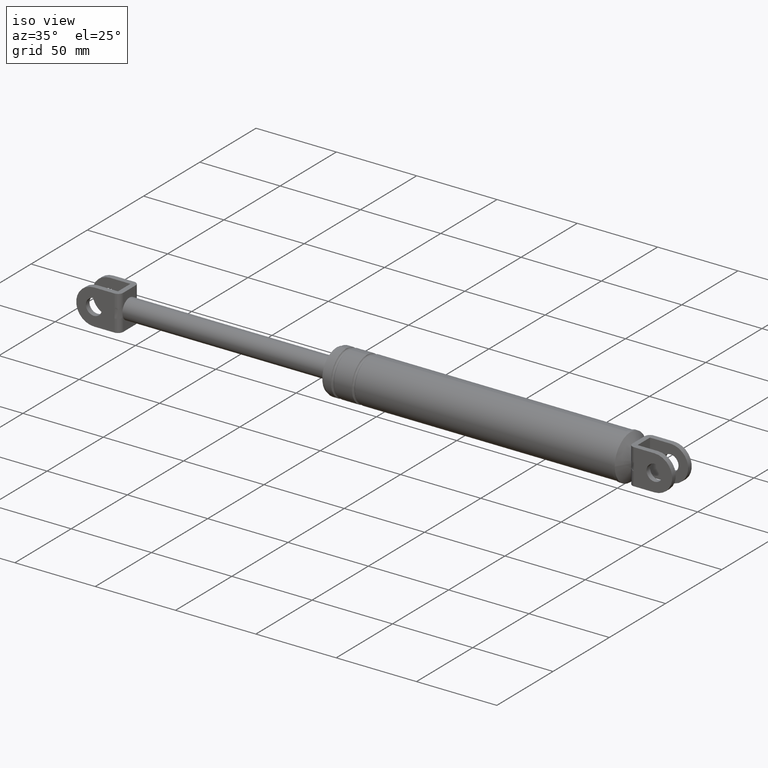
[diagram: clean part render]
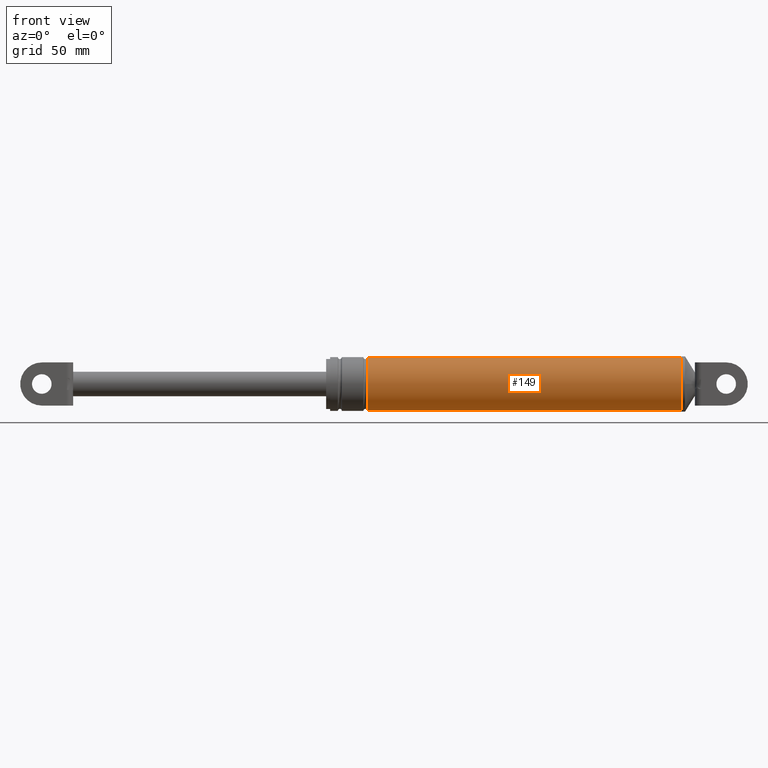
[diagram: tour spotlight — one face highlighted and labeled with its STEP entity id]
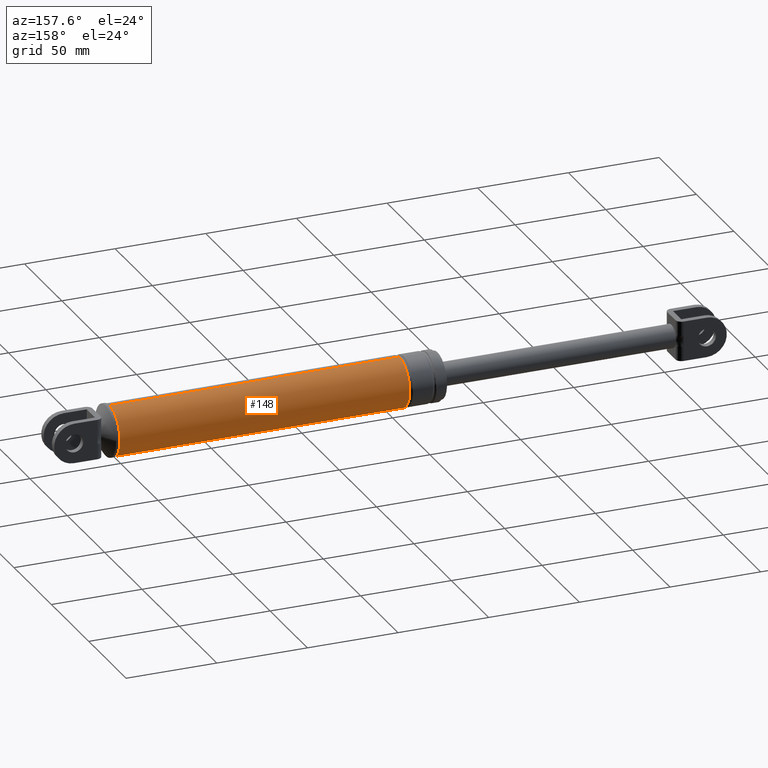
[diagram: tour spotlight — one face highlighted and labeled with its STEP entity id]
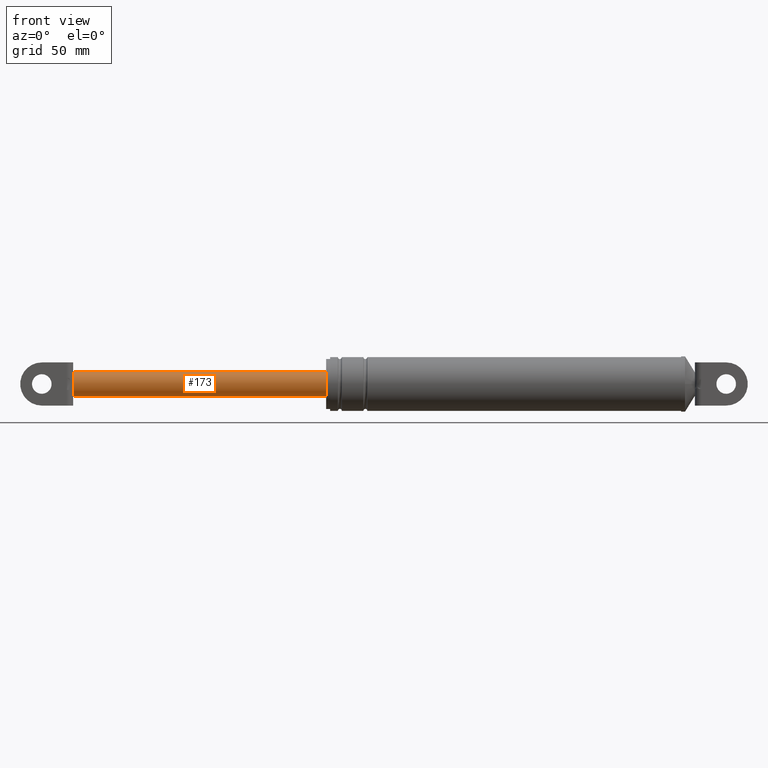
[diagram: tour spotlight — one face highlighted and labeled with its STEP entity id]
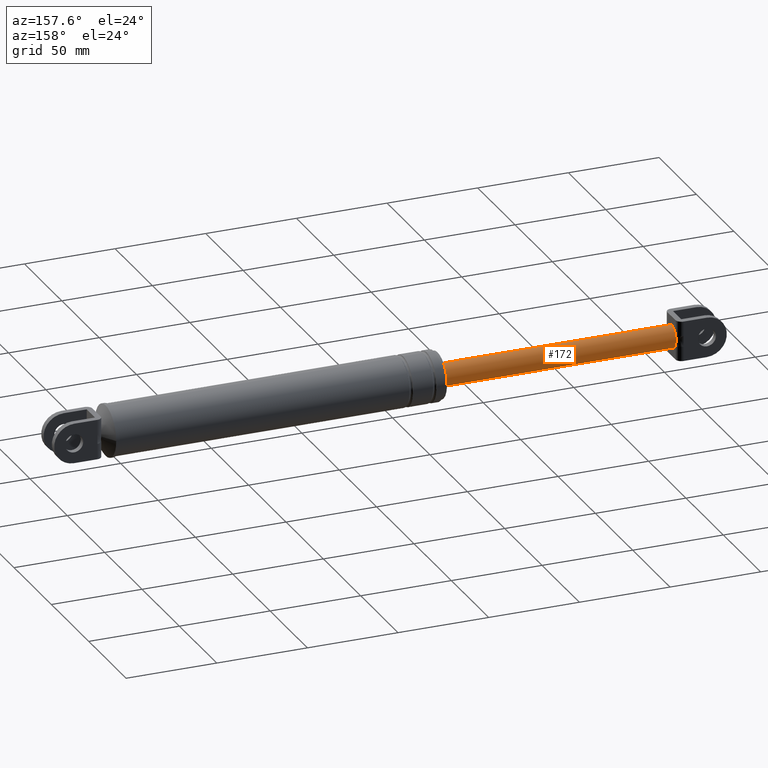
[diagram: tour spotlight — one face highlighted and labeled with its STEP entity id]
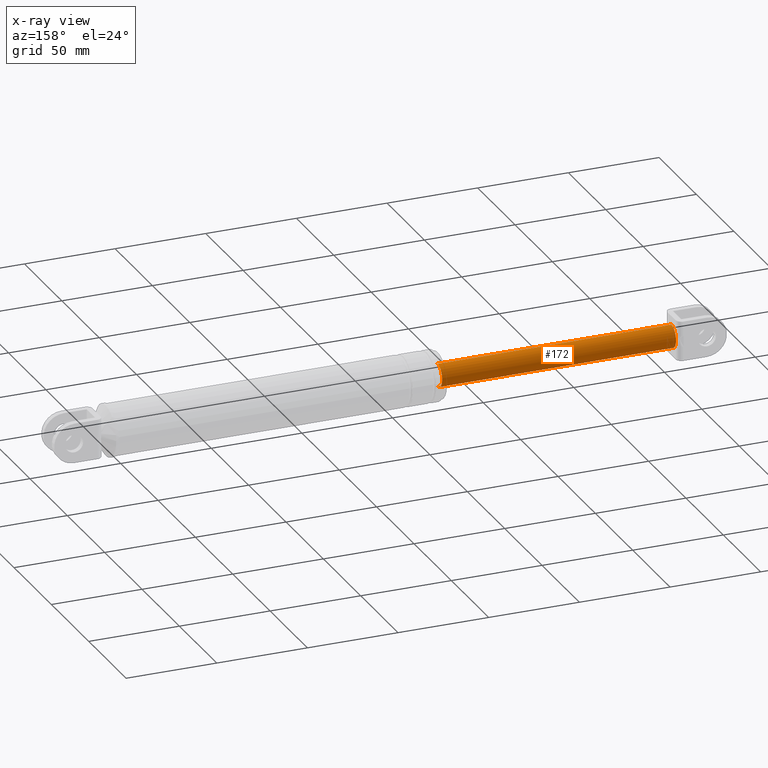
[diagram: x-ray of the same camera — body ghosted, this tour face saturated]
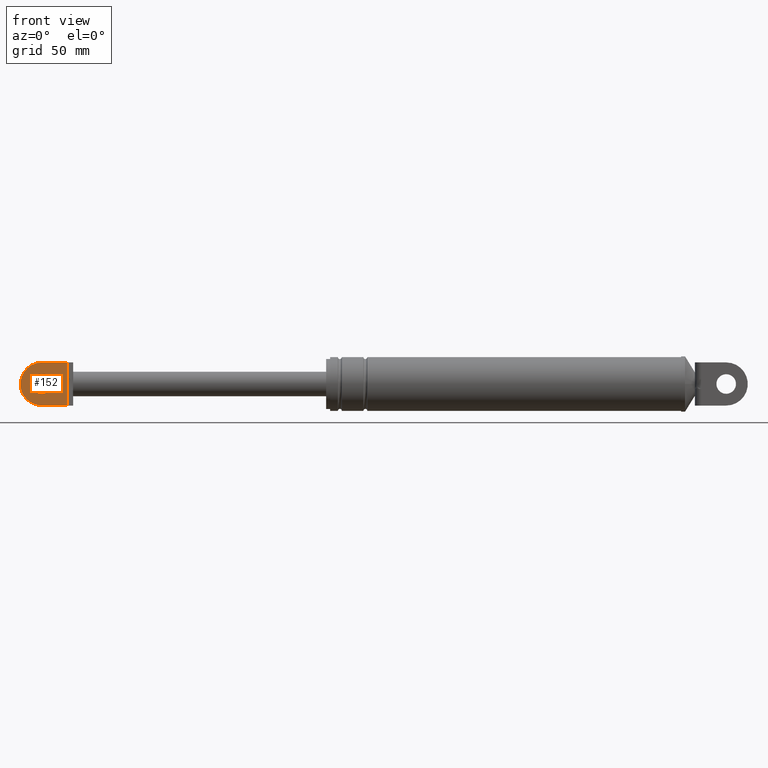
[diagram: tour spotlight — one face highlighted and labeled with its STEP entity id]
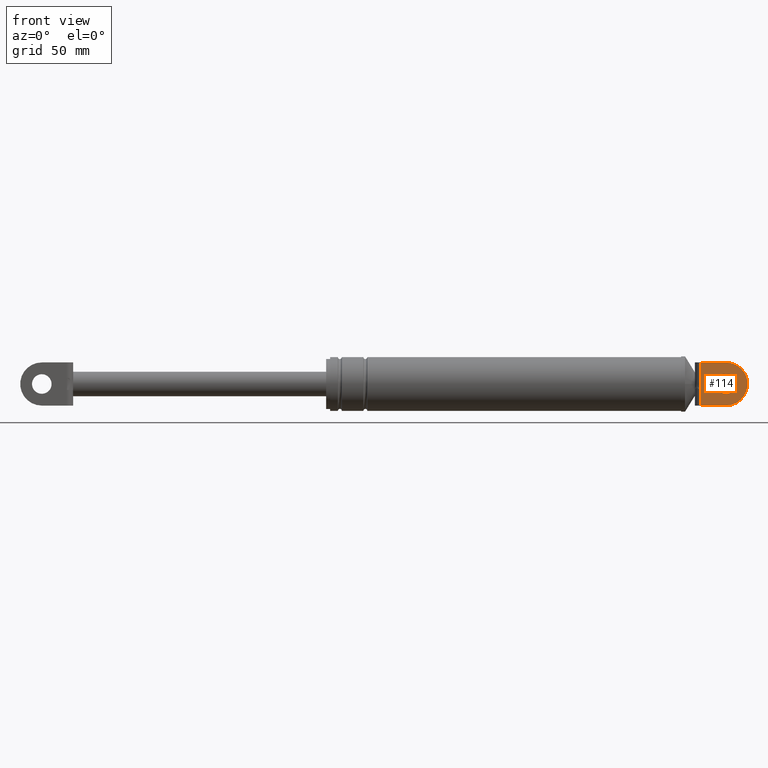
[diagram: tour spotlight — one face highlighted and labeled with its STEP entity id]
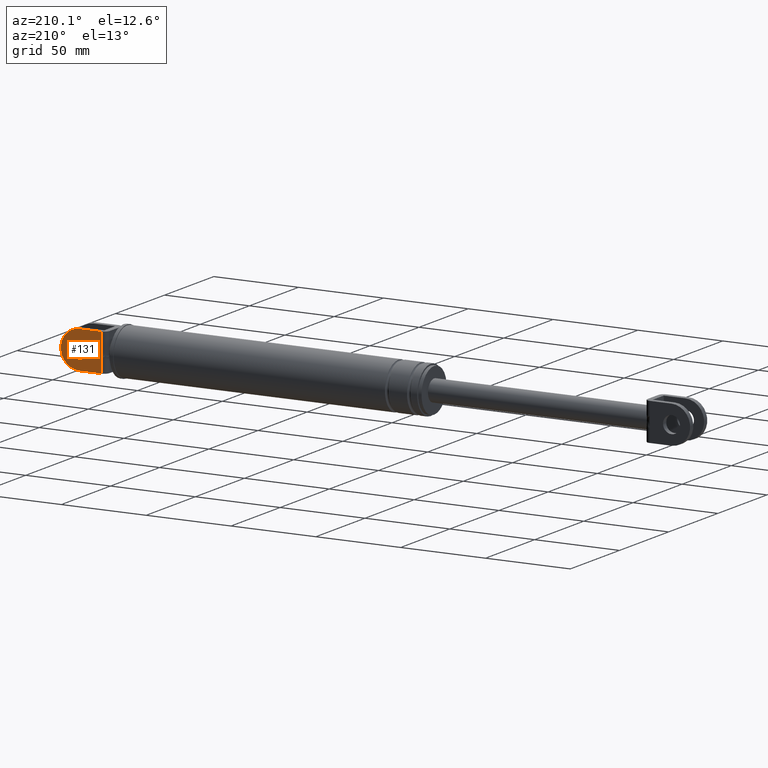
[diagram: tour spotlight — one face highlighted and labeled with its STEP entity id]
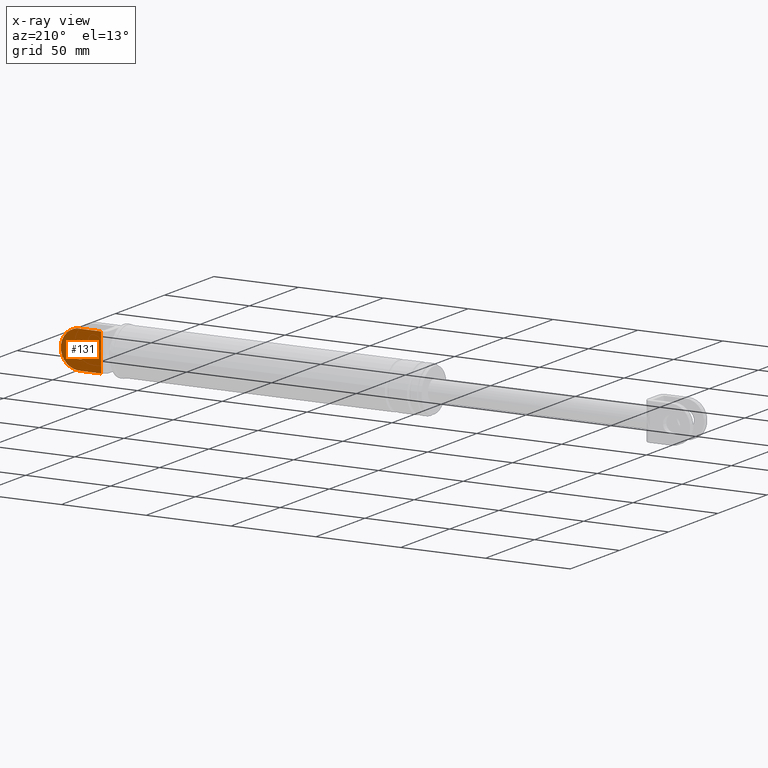
[diagram: x-ray of the same camera — body ghosted, this tour face saturated]
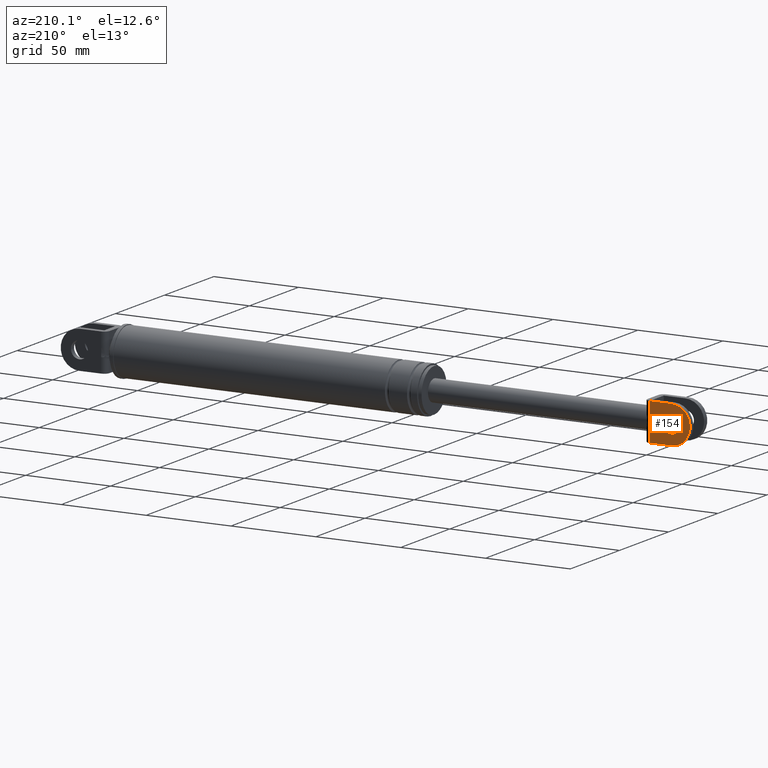
[diagram: tour spotlight — one face highlighted and labeled with its STEP entity id]
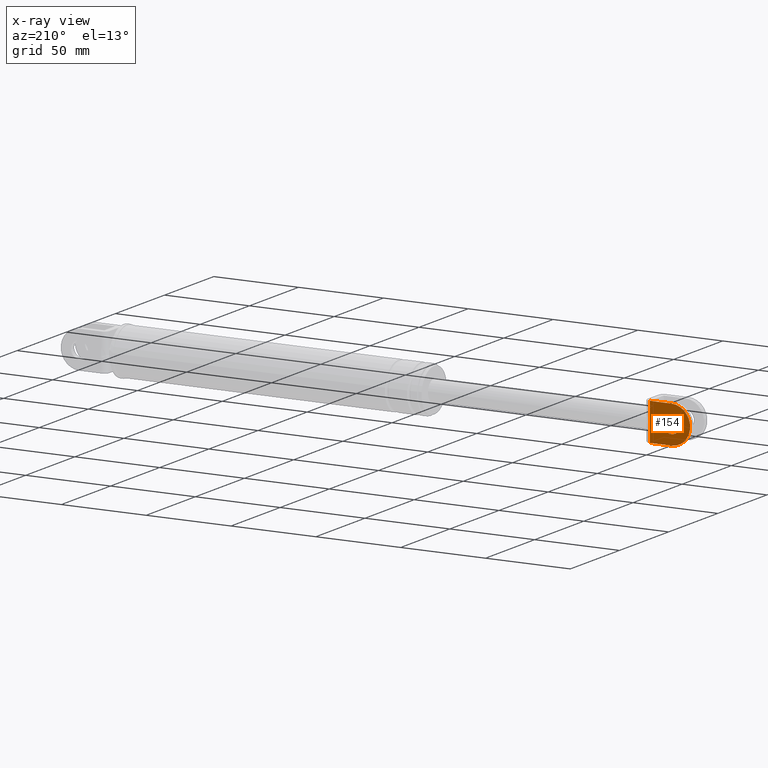
[diagram: x-ray of the same camera — body ghosted, this tour face saturated]
A machine part: a face-by-face anatomy tour. The part has 64 B-rep faces; the first image is the clean iso view, then the 8 largest visible faces are spotlighted one at a time (largest first), each with its STEP entity span.

Face 1 — front view, entity #149. In plain terms, the highlighted cylindrical surface (edge-blend (fillet) strip) has radius 13.7 mm, axis along (1, 0, 0).
Definition (entity closure, byte-faithful):
#149=ADVANCED_FACE('',(#553),#552,.T.);
#552=CYLINDRICAL_SURFACE('',#1208,1.37000000000E+001);
#553=FACE_OUTER_BOUND('',#1209,.T.);
#1205=CARTESIAN_POINT('',(0.00000000000E+000,0.00000000000E+000,1.77370805655E+002));
#1206=DIRECTION('',(1.00000000000E+000,-0.00000000000E+000,-0.00000000000E+000));
#1207=DIRECTION('',(-0.00000000000E+000,-0.00000000000E+000,-1.00000000000E+000));
#1208=AXIS2_PLACEMENT_3D('',#1205,#1206,#1207);
#1209=EDGE_LOOP('',(#1576,#1577,#1578,#1579));
#1576=ORIENTED_EDGE('',*,*,#1795,.F.);
#1577=ORIENTED_EDGE('',*,*,#1804,.T.);
#1578=ORIENTED_EDGE('',*,*,#1772,.T.);
#1579=ORIENTED_EDGE('',*,*,#1805,.F.);
#1772=EDGE_CURVE('',#2274,#2275,#2276,.T.);
#1795=EDGE_CURVE('',#2391,#2390,#2424,.T.);
#1804=EDGE_CURVE('',#2391,#2274,#2482,.T.);
#1805=EDGE_CURVE('',#2390,#2275,#2488,.T.);
#2274=VERTEX_POINT('',#3188);
#2275=VERTEX_POINT('',#3189);
#2276=CIRCLE('',#3193,1.37000000000E+001);
#2390=VERTEX_POINT('',#3256);
#2391=VERTEX_POINT('',#3257);
#2424=CIRCLE('',#3287,1.37000000000E+001);
#2482=(BOUNDED_CURVE() B_SPLINE_CURVE(1,(#3316,#3317),.UNSPECIFIED.,.F.,.F.) B_SPLINE_CURVE_WITH_KNOTS((2,2),(5.55555554106E-002,9.44444444405E-001),.UNSPECIFIED.) CURVE() GEOMETRIC_REPRESENTATION_ITEM() RATIONAL_B_SPLINE_CURVE((1.00000000000E+000,1.00000000000E+000)) REPRESENTATION_ITEM('') );
#2488=(BOUNDED_CURVE() B_SPLINE_CURVE(1,(#3318,#3319),.UNSPECIFIED.,.F.,.F.) B_SPLINE_CURVE_WITH_KNOTS((2,2),(5.55555555556E-002,9.44444444444E-001),.UNSPECIFIED.) CURVE() GEOMETRIC_REPRESENTATION_ITEM() RATIONAL_B_SPLINE_CURVE((7.50000000000E-001,7.50000000000E-001)) REPRESENTATION_ITEM('') );
#3188=CARTESIAN_POINT('',(3.56225911423E+002,0.00000000000E+000,1.63670805655E+002));
#3189=CARTESIAN_POINT('',(3.56225911423E+002,0.00000000000E+000,1.91070805655E+002));
#3190=CARTESIAN_POINT('',(3.56225911423E+002,0.00000000000E+000,1.77370805655E+002));
#3191=DIRECTION('',(-1.00000000000E+000,0.00000000000E+000,0.00000000000E+000));
#3192=DIRECTION('',(0.00000000000E+000,-1.22460635382E-016,1.00000000000E+000));
#3193=AXIS2_PLACEMENT_3D('',#3190,#3191,#3192);
#3256=CARTESIAN_POINT('',(1.96225911423E+002,0.00000000000E+000,1.91070805655E+002));
#3257=CARTESIAN_POINT('',(1.96225911423E+002,0.00000000000E+000,1.63670805655E+002));
#3284=CARTESIAN_POINT('',(1.96225911423E+002,0.00000000000E+000,1.77370805655E+002));
#3285=DIRECTION('',(-1.00000000000E+000,0.00000000000E+000,0.00000000000E+000));
#3286=DIRECTION('',(0.00000000000E+000,-1.22460635382E-016,1.00000000000E+000));
#3287=AXIS2_PLACEMENT_3D('',#3284,#3285,#3286);
#3316=CARTESIAN_POINT('',(1.96225911397E+002,0.00000000000E+000,1.63670805655E+002));
#3317=CARTESIAN_POINT('',(3.56225911416E+002,0.00000000000E+000,1.63670805655E+002));
#3318=CARTESIAN_POINT('',(1.96225911423E+002,-5.92118946467E-016,1.91070805655E+002));
#3319=CARTESIAN_POINT('',(3.56225911423E+002,-5.92118946467E-016,1.91070805655E+002));

Face 2 — auxiliary view, entity #148. In plain terms, the highlighted cylindrical surface (edge-blend (fillet) strip) has radius 13.7 mm, axis along (1, 0, 0).
Definition (entity closure, byte-faithful):
#148=ADVANCED_FACE('',(#543),#542,.T.);
#542=CYLINDRICAL_SURFACE('',#1203,1.37000000000E+001);
#543=FACE_OUTER_BOUND('',#1204,.T.);
#1200=CARTESIAN_POINT('',(0.00000000000E+000,0.00000000000E+000,1.77370805655E+002));
#1201=DIRECTION('',(1.00000000000E+000,-0.00000000000E+000,-0.00000000000E+000));
#1202=DIRECTION('',(-0.00000000000E+000,-0.00000000000E+000,-1.00000000000E+000));
#1203=AXIS2_PLACEMENT_3D('',#1200,#1201,#1202);
#1204=EDGE_LOOP('',(#1572,#1573,#1574,#1575));
#1572=ORIENTED_EDGE('',*,*,#1773,.T.);
#1573=ORIENTED_EDGE('',*,*,#1804,.F.);
#1574=ORIENTED_EDGE('',*,*,#1790,.F.);
#1575=ORIENTED_EDGE('',*,*,#1805,.T.);
#1773=EDGE_CURVE('',#2275,#2274,#2282,.T.);
#1790=EDGE_CURVE('',#2390,#2391,#2392,.T.);
#1804=EDGE_CURVE('',#2391,#2274,#2482,.T.);
#1805=EDGE_CURVE('',#2390,#2275,#2488,.T.);
#2274=VERTEX_POINT('',#3188);
#2275=VERTEX_POINT('',#3189);
#2282=CIRCLE('',#3197,1.37000000000E+001);
#2390=VERTEX_POINT('',#3256);
#2391=VERTEX_POINT('',#3257);
#2392=CIRCLE('',#3261,1.37000000000E+001);
#2482=(BOUNDED_CURVE() B_SPLINE_CURVE(1,(#3316,#3317),.UNSPECIFIED.,.F.,.F.) B_SPLINE_CURVE_WITH_KNOTS((2,2),(5.55555554106E-002,9.44444444405E-001),.UNSPECIFIED.) CURVE() GEOMETRIC_REPRESENTATION_ITEM() RATIONAL_B_SPLINE_CURVE((1.00000000000E+000,1.00000000000E+000)) REPRESENTATION_ITEM('') );
#2488=(BOUNDED_CURVE() B_SPLINE_CURVE(1,(#3318,#3319),.UNSPECIFIED.,.F.,.F.) B_SPLINE_CURVE_WITH_KNOTS((2,2),(5.55555555556E-002,9.44444444444E-001),.UNSPECIFIED.) CURVE() GEOMETRIC_REPRESENTATION_ITEM() RATIONAL_B_SPLINE_CURVE((7.50000000000E-001,7.50000000000E-001)) REPRESENTATION_ITEM('') );
#3188=CARTESIAN_POINT('',(3.56225911423E+002,0.00000000000E+000,1.63670805655E+002));
#3189=CARTESIAN_POINT('',(3.56225911423E+002,0.00000000000E+000,1.91070805655E+002));
#3194=CARTESIAN_POINT('',(3.56225911423E+002,0.00000000000E+000,1.77370805655E+002));
#3195=DIRECTION('',(-1.00000000000E+000,0.00000000000E+000,0.00000000000E+000));
#3196=DIRECTION('',(0.00000000000E+000,-1.22460635382E-016,1.00000000000E+000));
#3197=AXIS2_PLACEMENT_3D('',#3194,#3195,#3196);
#3256=CARTESIAN_POINT('',(1.96225911423E+002,0.00000000000E+000,1.91070805655E+002));
#3257=CARTESIAN_POINT('',(1.96225911423E+002,0.00000000000E+000,1.63670805655E+002));
#3258=CARTESIAN_POINT('',(1.96225911423E+002,0.00000000000E+000,1.77370805655E+002));
#3259=DIRECTION('',(-1.00000000000E+000,0.00000000000E+000,0.00000000000E+000));
#3260=DIRECTION('',(0.00000000000E+000,-1.22460635382E-016,1.00000000000E+000));
#3261=AXIS2_PLACEMENT_3D('',#3258,#3259,#3260);
#3316=CARTESIAN_POINT('',(1.96225911397E+002,0.00000000000E+000,1.63670805655E+002));
#3317=CARTESIAN_POINT('',(3.56225911416E+002,0.00000000000E+000,1.63670805655E+002));
#3318=CARTESIAN_POINT('',(1.96225911423E+002,-5.92118946467E-016,1.91070805655E+002));
#3319=CARTESIAN_POINT('',(3.56225911423E+002,-5.92118946467E-016,1.91070805655E+002));

Face 3 — front view, entity #173. In plain terms, the highlighted cylindrical surface (edge-blend (fillet) strip) has radius 6.25 mm, axis along (1, 0, 0).
Definition (entity closure, byte-faithful):
#173=ADVANCED_FACE('',(#797),#796,.T.);
#796=CYLINDRICAL_SURFACE('',#1384,6.25000000000E+000);
#797=FACE_OUTER_BOUND('',#1385,.T.);
#1381=CARTESIAN_POINT('',(0.00000000000E+000,0.00000000000E+000,1.77370805655E+002));
#1382=DIRECTION('',(1.00000000000E+000,-0.00000000000E+000,-0.00000000000E+000));
#1383=DIRECTION('',(-0.00000000000E+000,-0.00000000000E+000,-1.00000000000E+000));
#1384=AXIS2_PLACEMENT_3D('',#1381,#1382,#1383);
#1385=EDGE_LOOP('',(#1698,#1699,#1700,#1701,#1702,#1703));
#1698=ORIENTED_EDGE('',*,*,#1838,.F.);
#1699=ORIENTED_EDGE('',*,*,#1817,.F.);
#1700=ORIENTED_EDGE('',*,*,#1848,.F.);
#1701=ORIENTED_EDGE('',*,*,#1866,.T.);
#1702=ORIENTED_EDGE('',*,*,#1858,.T.);
#1703=ORIENTED_EDGE('',*,*,#1867,.F.);
#1817=EDGE_CURVE('',#2562,#2569,#2570,.T.);
#1838=EDGE_CURVE('',#2569,#2711,#2712,.T.);
#1848=EDGE_CURVE('',#2772,#2562,#2779,.T.);
#1858=EDGE_CURVE('',#2842,#2843,#2844,.T.);
#1866=EDGE_CURVE('',#2772,#2842,#2894,.T.);
#1867=EDGE_CURVE('',#2711,#2843,#2900,.T.);
#2562=VERTEX_POINT('',#3366);
#2569=VERTEX_POINT('',#3371);
#2570=CIRCLE('',#3375,6.25000000000E+000);
#2711=VERTEX_POINT('',#3468);
#2712=CIRCLE('',#3472,6.25000000000E+000);
#2772=VERTEX_POINT('',#3507);
#2779=CIRCLE('',#3515,6.25000000000E+000);
#2842=VERTEX_POINT('',#3547);
#2843=VERTEX_POINT('',#3548);
#2844=CIRCLE('',#3552,6.25000000000E+000);
#2894=(BOUNDED_CURVE() B_SPLINE_CURVE(1,(#3578,#3579),.UNSPECIFIED.,.F.,.F.) B_SPLINE_CURVE_WITH_KNOTS((2,2),(6.71140940856E-002,9.32885905909E-001),.UNSPECIFIED.) CURVE() GEOMETRIC_REPRESENTATION_ITEM() RATIONAL_B_SPLINE_CURVE((1.00000000000E+000,1.00000000000E+000)) REPRESENTATION_ITEM('') );
#2900=(BOUNDED_CURVE() B_SPLINE_CURVE(1,(#3580,#3581),.UNSPECIFIED.,.F.,.F.) B_SPLINE_CURVE_WITH_KNOTS((2,2),(6.71140939597E-002,9.32885906040E-001),.UNSPECIFIED.) CURVE() GEOMETRIC_REPRESENTATION_ITEM() RATIONAL_B_SPLINE_CURVE((7.50000000000E-001,7.50000000000E-001)) REPRESENTATION_ITEM('') );
#3366=CARTESIAN_POINT('',(4.62259114227E+001,-5.49999700000E+000,1.74402214575E+002));
#3371=CARTESIAN_POINT('',(4.62259114227E+001,-5.49999700000E+000,1.80339396735E+002));
#3372=CARTESIAN_POINT('',(4.62259114227E+001,0.00000000000E+000,1.77370805655E+002));
#3373=DIRECTION('',(-1.00000000000E+000,0.00000000000E+000,0.00000000000E+000));
#3374=DIRECTION('',(-0.00000000000E+000,-0.00000000000E+000,-1.00000000000E+000));
#3375=AXIS2_PLACEMENT_3D('',#3372,#3373,#3374);
#3468=CARTESIAN_POINT('',(4.62259114227E+001,7.89135251338E-007,1.83620805655E+002));
#3469=CARTESIAN_POINT('',(4.62259114227E+001,0.00000000000E+000,1.77370805655E+002));
#3470=DIRECTION('',(-1.00000000000E+000,0.00000000000E+000,0.00000000000E+000));
#3471=DIRECTION('',(-0.00000000000E+000,-0.00000000000E+000,-1.00000000000E+000));
#3472=AXIS2_PLACEMENT_3D('',#3469,#3470,#3471);
#3507=CARTESIAN_POINT('',(4.62259114227E+001,4.27327436247E-012,1.71120805655E+002));
#3512=CARTESIAN_POINT('',(4.62259114227E+001,0.00000000000E+000,1.77370805655E+002));
#3513=DIRECTION('',(-1.00000000000E+000,0.00000000000E+000,0.00000000000E+000));
#3514=DIRECTION('',(-0.00000000000E+000,8.79999520000E-001,-4.74974572793E-001));
#3515=AXIS2_PLACEMENT_3D('',#3512,#3513,#3514);
#3547=CARTESIAN_POINT('',(1.75225911423E+002,0.00000000000E+000,1.71120805655E+002));
#3548=CARTESIAN_POINT('',(1.75225911423E+002,0.00000000000E+000,1.83620805655E+002));
#3549=CARTESIAN_POINT('',(1.75225911423E+002,0.00000000000E+000,1.77370805655E+002));
#3550=DIRECTION('',(-1.00000000000E+000,0.00000000000E+000,0.00000000000E+000));
#3551=DIRECTION('',(0.00000000000E+000,-1.22460635382E-016,1.00000000000E+000));
#3552=AXIS2_PLACEMENT_3D('',#3549,#3550,#3551);
#3578=CARTESIAN_POINT('',(4.62259114414E+001,0.00000000000E+000,1.71120805655E+002));
#3579=CARTESIAN_POINT('',(1.75225911403E+002,0.00000000000E+000,1.71120805655E+002));
#3580=CARTESIAN_POINT('',(4.62259114227E+001,0.00000000000E+000,1.83620805655E+002));
#3581=CARTESIAN_POINT('',(1.75225911423E+002,0.00000000000E+000,1.83620805655E+002));

Face 4 — auxiliary view, entity #172. An x-ray twin of the same camera follows (body ghosted, this face saturated) — the face is partly hidden behind the body. In plain terms, the highlighted cylindrical surface (edge-blend (fillet) strip) has radius 6.25 mm, axis along (1, 0, 0).
Definition (entity closure, byte-faithful):
#172=ADVANCED_FACE('',(#787),#786,.T.);
#786=CYLINDRICAL_SURFACE('',#1379,6.25000000000E+000);
#787=FACE_OUTER_BOUND('',#1380,.T.);
#1376=CARTESIAN_POINT('',(0.00000000000E+000,0.00000000000E+000,1.77370805655E+002));
#1377=DIRECTION('',(1.00000000000E+000,-0.00000000000E+000,-0.00000000000E+000));
#1378=DIRECTION('',(-0.00000000000E+000,-0.00000000000E+000,-1.00000000000E+000));
#1379=AXIS2_PLACEMENT_3D('',#1376,#1377,#1378);
#1380=EDGE_LOOP('',(#1692,#1693,#1694,#1695,#1696,#1697));
#1692=ORIENTED_EDGE('',*,*,#1859,.T.);
#1693=ORIENTED_EDGE('',*,*,#1866,.F.);
#1694=ORIENTED_EDGE('',*,*,#1847,.F.);
#1695=ORIENTED_EDGE('',*,*,#1829,.F.);
#1696=ORIENTED_EDGE('',*,*,#1839,.F.);
#1697=ORIENTED_EDGE('',*,*,#1867,.T.);
#1829=EDGE_CURVE('',#2645,#2638,#2652,.T.);
#1839=EDGE_CURVE('',#2711,#2645,#2718,.T.);
#1847=EDGE_CURVE('',#2638,#2772,#2773,.T.);
#1859=EDGE_CURVE('',#2843,#2842,#2850,.T.);
#1866=EDGE_CURVE('',#2772,#2842,#2894,.T.);
#1867=EDGE_CURVE('',#2711,#2843,#2900,.T.);
#2638=VERTEX_POINT('',#3422);
#2645=VERTEX_POINT('',#3427);
#2652=CIRCLE('',#3435,6.25000000000E+000);
#2711=VERTEX_POINT('',#3468);
#2718=CIRCLE('',#3476,6.25000000000E+000);
#2772=VERTEX_POINT('',#3507);
#2773=CIRCLE('',#3511,6.25000000000E+000);
#2842=VERTEX_POINT('',#3547);
#2843=VERTEX_POINT('',#3548);
#2850=CIRCLE('',#3556,6.25000000000E+000);
#2894=(BOUNDED_CURVE() B_SPLINE_CURVE(1,(#3578,#3579),.UNSPECIFIED.,.F.,.F.) B_SPLINE_CURVE_WITH_KNOTS((2,2),(6.71140940856E-002,9.32885905909E-001),.UNSPECIFIED.) CURVE() GEOMETRIC_REPRESENTATION_ITEM() RATIONAL_B_SPLINE_CURVE((1.00000000000E+000,1.00000000000E+000)) REPRESENTATION_ITEM('') );
#2900=(BOUNDED_CURVE() B_SPLINE_CURVE(1,(#3580,#3581),.UNSPECIFIED.,.F.,.F.) B_SPLINE_CURVE_WITH_KNOTS((2,2),(6.71140939597E-002,9.32885906040E-001),.UNSPECIFIED.) CURVE() GEOMETRIC_REPRESENTATION_ITEM() RATIONAL_B_SPLINE_CURVE((7.50000000000E-001,7.50000000000E-001)) REPRESENTATION_ITEM('') );
#3422=CARTESIAN_POINT('',(4.62259114227E+001,5.49999700000E+000,1.74402214575E+002));
#3427=CARTESIAN_POINT('',(4.62259114227E+001,5.49999700000E+000,1.80339396735E+002));
#3432=CARTESIAN_POINT('',(4.62259114227E+001,0.00000000000E+000,1.77370805655E+002));
#3433=DIRECTION('',(-1.00000000000E+000,0.00000000000E+000,0.00000000000E+000));
#3434=DIRECTION('',(-0.00000000000E+000,-0.00000000000E+000,-1.00000000000E+000));
#3435=AXIS2_PLACEMENT_3D('',#3432,#3433,#3434);
#3468=CARTESIAN_POINT('',(4.62259114227E+001,7.89135251338E-007,1.83620805655E+002));
#3473=CARTESIAN_POINT('',(4.62259114227E+001,0.00000000000E+000,1.77370805655E+002));
#3474=DIRECTION('',(-1.00000000000E+000,0.00000000000E+000,0.00000000000E+000));
#3475=DIRECTION('',(-0.00000000000E+000,-0.00000000000E+000,-1.00000000000E+000));
#3476=AXIS2_PLACEMENT_3D('',#3473,#3474,#3475);
#3507=CARTESIAN_POINT('',(4.62259114227E+001,4.27327436247E-012,1.71120805655E+002));
#3508=CARTESIAN_POINT('',(4.62259114227E+001,0.00000000000E+000,1.77370805655E+002));
#3509=DIRECTION('',(-1.00000000000E+000,0.00000000000E+000,0.00000000000E+000));
#3510=DIRECTION('',(-0.00000000000E+000,8.79999520000E-001,-4.74974572793E-001));
#3511=AXIS2_PLACEMENT_3D('',#3508,#3509,#3510);
#3547=CARTESIAN_POINT('',(1.75225911423E+002,0.00000000000E+000,1.71120805655E+002));
#3548=CARTESIAN_POINT('',(1.75225911423E+002,0.00000000000E+000,1.83620805655E+002));
#3553=CARTESIAN_POINT('',(1.75225911423E+002,0.00000000000E+000,1.77370805655E+002));
#3554=DIRECTION('',(-1.00000000000E+000,0.00000000000E+000,0.00000000000E+000));
#3555=DIRECTION('',(0.00000000000E+000,-1.22460635382E-016,1.00000000000E+000));
#3556=AXIS2_PLACEMENT_3D('',#3553,#3554,#3555);
#3578=CARTESIAN_POINT('',(4.62259114414E+001,0.00000000000E+000,1.71120805655E+002));
#3579=CARTESIAN_POINT('',(1.75225911403E+002,0.00000000000E+000,1.71120805655E+002));
#3580=CARTESIAN_POINT('',(4.62259114227E+001,0.00000000000E+000,1.83620805655E+002));
#3581=CARTESIAN_POINT('',(1.75225911423E+002,0.00000000000E+000,1.83620805655E+002));

Face 5 — front view, entity #152. In plain terms, the highlighted planar face has unit normal (0, -1, 0).
Definition (entity closure, byte-faithful):
#152=ADVANCED_FACE('',(#583,#584),#582,.T.);
#582=PLANE('',#1223);
#583=FACE_OUTER_BOUND('',#1224,.T.);
#584=FACE_BOUND('',#1225,.T.);
#1220=CARTESIAN_POINT('',(1.68369951810E+001,-8.69999700000E+000,1.90570805655E+002));
#1221=DIRECTION('',(0.00000000000E+000,-1.00000000000E+000,0.00000000000E+000));
#1222=DIRECTION('',(0.00000000000E+000,0.00000000000E+000,-1.00000000000E+000));
#1223=AXIS2_PLACEMENT_3D('',#1220,#1221,#1222);
#1224=EDGE_LOOP('',(#1588,#1589,#1590,#1591,#1592,#1593));
#1225=EDGE_LOOP('',(#1594,#1595));
#1588=ORIENTED_EDGE('',*,*,#1808,.F.);
#1589=ORIENTED_EDGE('',*,*,#1809,.T.);
#1590=ORIENTED_EDGE('',*,*,#1810,.T.);
#1591=ORIENTED_EDGE('',*,*,#1811,.T.);
#1592=ORIENTED_EDGE('',*,*,#1812,.T.);
#1593=ORIENTED_EDGE('',*,*,#1813,.T.);
#1594=ORIENTED_EDGE('',*,*,#1814,.F.);
#1595=ORIENTED_EDGE('',*,*,#1815,.F.);
#1808=EDGE_CURVE('',#2506,#2507,#2508,.T.);
#1809=EDGE_CURVE('',#2506,#2514,#2515,.T.);
#1810=EDGE_CURVE('',#2514,#2521,#2522,.T.);
#1811=EDGE_CURVE('',#2521,#2528,#2529,.T.);
#1812=EDGE_CURVE('',#2528,#2535,#2536,.T.);
#1813=EDGE_CURVE('',#2535,#2507,#2542,.T.);
#1814=EDGE_CURVE('',#2548,#2549,#2550,.T.);
#1815=EDGE_CURVE('',#2549,#2548,#2556,.T.);
#2506=VERTEX_POINT('',#3324);
#2507=VERTEX_POINT('',#3325);
#2508=LINE('',#3326,#3327);
#2514=VERTEX_POINT('',#3329);
#2515=LINE('',#3330,#3331);
#2521=VERTEX_POINT('',#3333);
#2522=(BOUNDED_CURVE() B_SPLINE_CURVE(3,(#3334,#3335,#3336,#3337,#3338,#3339,#3340,#3341,#3342,#3343),.UNSPECIFIED.,.F.,.F.) B_SPLINE_CURVE_WITH_KNOTS((4,2,2,2,4),(0.00000000000E+000,1.48458878572E-003,2.96917757145E-003,4.45376635717E-003,5.93835514290E-003),.UNSPECIFIED.) CURVE() GEOMETRIC_REPRESENTATION_ITEM() RATIONAL_B_SPLINE_CURVE((1.00000000000E+000,1.00000000000E+000,1.00000000000E+000,1.00000000000E+000,1.00000000000E+000,1.00000000000E+000,1.00000000000E+000,1.00000000000E+000,1.00000000000E+000,1.00000000000E+000)) REPRESENTATION_ITEM('') );
#2528=VERTEX_POINT('',#3344);
#2529=LINE('',#3345,#3346);
#2535=VERTEX_POINT('',#3348);
#2536=LINE('',#3349,#3350);
#2542=CIRCLE('',#3355,1.10000000000E+001);
#2548=VERTEX_POINT('',#3356);
#2549=VERTEX_POINT('',#3357);
#2550=CIRCLE('',#3361,5.00000000000E+000);
#2556=CIRCLE('',#3365,5.00000000000E+000);
#3324=CARTESIAN_POINT('',(4.30259114227E+001,-8.69999700000E+000,1.66370805655E+002));
#3325=CARTESIAN_POINT('',(3.02259104627E+001,-8.69999700000E+000,1.66370805655E+002));
#3326=CARTESIAN_POINT('',(4.30259114227E+001,-8.69999700000E+000,1.66370805655E+002));
#3327=VECTOR('',#3328,1.28000009599E+001);
#3328=DIRECTION('',(-1.00000000000E+000,0.00000000000E+000,0.00000000000E+000));
#3329=CARTESIAN_POINT('',(4.30259114227E+001,-8.69999700000E+000,1.74402214575E+002));
#3330=CARTESIAN_POINT('',(4.30259114227E+001,-8.69999700000E+000,1.66370805655E+002));
#3331=VECTOR('',#3332,8.03140892004E+000);
#3332=DIRECTION('',(0.00000000000E+000,0.00000000000E+000,1.00000000000E+000));
#3333=CARTESIAN_POINT('',(4.30259114227E+001,-8.69999700000E+000,1.80339396735E+002));
#3334=CARTESIAN_POINT('',(4.30259114227E+001,-8.69999700000E+000,1.74402214575E+002));
#3335=CARTESIAN_POINT('',(4.30259114227E+001,-8.69999700000E+000,1.74897077695E+002));
#3336=CARTESIAN_POINT('',(4.30514511801E+001,-8.69999700000E+000,1.75391384177E+002));
#3337=CARTESIAN_POINT('',(4.30966743184E+001,-8.69999700000E+000,1.76380095651E+002));
#3338=CARTESIAN_POINT('',(4.31150142773E+001,-8.69999700000E+000,1.76874550917E+002));
#3339=CARTESIAN_POINT('',(4.31150738398E+001,-8.69999700000E+000,1.77864314697E+002));
#3340=CARTESIAN_POINT('',(4.30967592183E+001,-8.69999700000E+000,1.78359551671E+002));
#3341=CARTESIAN_POINT('',(4.30515059508E+001,-8.69999700000E+000,1.79349137177E+002));
#3342=CARTESIAN_POINT('',(4.30259114227E+001,-8.69999700000E+000,1.79843828167E+002));
#3343=CARTESIAN_POINT('',(4.30259114227E+001,-8.69999700000E+000,1.80339396735E+002));
#3344=CARTESIAN_POINT('',(4.30259114227E+001,-8.69999700000E+000,1.88370805655E+002));
#3345=CARTESIAN_POINT('',(4.30259114227E+001,-8.69999700000E+000,1.80339396735E+002));
#3346=VECTOR('',#3347,8.03140892004E+000);
#3347=DIRECTION('',(0.00000000000E+000,0.00000000000E+000,1.00000000000E+000));
#3348=CARTESIAN_POINT('',(3.02259104627E+001,-8.69999700000E+000,1.88370805655E+002));
#3349=CARTESIAN_POINT('',(4.30259114227E+001,-8.69999700000E+000,1.88370805655E+002));
#3350=VECTOR('',#3351,1.28000009599E+001);
#3351=DIRECTION('',(-1.00000000000E+000,0.00000000000E+000,0.00000000000E+000));
#3352=CARTESIAN_POINT('',(3.02259114227E+001,-8.69999700000E+000,1.77370805655E+002));
#3353=DIRECTION('',(0.00000000000E+000,-1.00000000000E+000,0.00000000000E+000));
#3354=DIRECTION('',(-0.00000000000E+000,-0.00000000000E+000,-1.00000000000E+000));
#3355=AXIS2_PLACEMENT_3D('',#3352,#3353,#3354);
#3356=CARTESIAN_POINT('',(3.02259114227E+001,-8.69999700000E+000,1.72370805655E+002));
#3357=CARTESIAN_POINT('',(3.02259114227E+001,-8.69999700000E+000,1.82370805655E+002));
#3358=CARTESIAN_POINT('',(3.02259114227E+001,-8.69999700000E+000,1.77370805655E+002));
#3359=DIRECTION('',(-0.00000000000E+000,-1.00000000000E+000,0.00000000000E+000));
#3360=DIRECTION('',(-1.22460635382E-016,0.00000000000E+000,1.00000000000E+000));
#3361=AXIS2_PLACEMENT_3D('',#3358,#3359,#3360);
#3362=CARTESIAN_POINT('',(3.02259114227E+001,-8.69999700000E+000,1.77370805655E+002));
#3363=DIRECTION('',(-0.00000000000E+000,-1.00000000000E+000,0.00000000000E+000));
#3364=DIRECTION('',(-1.22460635382E-016,0.00000000000E+000,1.00000000000E+000));
#3365=AXIS2_PLACEMENT_3D('',#3362,#3363,#3364);

Face 6 — front view, entity #114. In plain terms, the highlighted planar face has unit normal (0, 1, 0).
Definition (entity closure, byte-faithful):
#114=ADVANCED_FACE('',(#197,#198),#196,.F.);
#196=PLANE('',#891);
#197=FACE_OUTER_BOUND('',#892,.T.);
#198=FACE_BOUND('',#893,.T.);
#888=CARTESIAN_POINT('',(3.64002671699E+002,-8.69999700000E+000,1.64170804503E+002));
#889=DIRECTION('',(0.00000000000E+000,1.00000000000E+000,0.00000000000E+000));
#890=DIRECTION('',(0.00000000000E+000,0.00000000000E+000,1.00000000000E+000));
#891=AXIS2_PLACEMENT_3D('',#888,#889,#890);
#892=EDGE_LOOP('',(#1406,#1407,#1408,#1409,#1410,#1411));
#893=EDGE_LOOP('',(#1412,#1413));
#1406=ORIENTED_EDGE('',*,*,#1722,.F.);
#1407=ORIENTED_EDGE('',*,*,#1723,.T.);
#1408=ORIENTED_EDGE('',*,*,#1718,.T.);
#1409=ORIENTED_EDGE('',*,*,#1724,.T.);
#1410=ORIENTED_EDGE('',*,*,#1725,.T.);
#1411=ORIENTED_EDGE('',*,*,#1726,.T.);
#1412=ORIENTED_EDGE('',*,*,#1727,.F.);
#1413=ORIENTED_EDGE('',*,*,#1728,.F.);
#1718=EDGE_CURVE('',#1913,#1906,#1914,.T.);
#1722=EDGE_CURVE('',#1940,#1941,#1942,.T.);
#1723=EDGE_CURVE('',#1940,#1913,#1948,.T.);
#1724=EDGE_CURVE('',#1906,#1954,#1955,.T.);
#1725=EDGE_CURVE('',#1954,#1961,#1962,.T.);
#1726=EDGE_CURVE('',#1961,#1941,#1968,.T.);
#1727=EDGE_CURVE('',#1974,#1975,#1976,.T.);
#1728=EDGE_CURVE('',#1975,#1974,#1982,.T.);
#1906=VERTEX_POINT('',#2950);
#1913=VERTEX_POINT('',#2955);
#1914=(BOUNDED_CURVE() B_SPLINE_CURVE(3,(#2956,#2957,#2958,#2959,#2960,#2961,#2962,#2963,#2964,#2965),.UNSPECIFIED.,.F.,.F.) B_SPLINE_CURVE_WITH_KNOTS((4,2,2,2,4),(0.00000000000E+000,1.19890467989E-003,2.39780935978E-003,3.59671403966E-003,4.79561871955E-003),.UNSPECIFIED.) CURVE() GEOMETRIC_REPRESENTATION_ITEM() RATIONAL_B_SPLINE_CURVE((1.00000000000E+000,1.00000000000E+000,1.00000000000E+000,1.00000000000E+000,1.00000000000E+000,1.00000000000E+000,1.00000000000E+000,1.00000000000E+000,1.00000000000E+000,1.00000000000E+000)) REPRESENTATION_ITEM('') );
#1940=VERTEX_POINT('',#2980);
#1941=VERTEX_POINT('',#2981);
#1942=LINE('',#2982,#2983);
#1948=LINE('',#2985,#2986);
#1954=VERTEX_POINT('',#2988);
#1955=LINE('',#2989,#2990);
#1961=VERTEX_POINT('',#2992);
#1962=LINE('',#2993,#2994);
#1968=CIRCLE('',#2999,1.10000000000E+001);
#1974=VERTEX_POINT('',#3000);
#1975=VERTEX_POINT('',#3001);
#1976=CIRCLE('',#3005,5.00000000000E+000);
#1982=CIRCLE('',#3009,5.00000000000E+000);
#2950=CARTESIAN_POINT('',(3.66425911423E+002,-8.69999700000E+000,1.74972883012E+002));
#2955=CARTESIAN_POINT('',(3.66425911423E+002,-8.69999700000E+000,1.79768728297E+002));
#2956=CARTESIAN_POINT('',(3.66425911423E+002,-8.69999700000E+000,1.79768728297E+002));
#2957=CARTESIAN_POINT('',(3.66425911423E+002,-8.69999700000E+000,1.79369072211E+002));
#2958=CARTESIAN_POINT('',(3.66414286078E+002,-8.69999700000E+000,1.78969535851E+002));
#2959=CARTESIAN_POINT('',(3.66394427151E+002,-8.69999700000E+000,1.78170428201E+002));
#2960=CARTESIAN_POINT('',(3.66386611570E+002,-8.69999700000E+000,1.77770852605E+002));
#2961=CARTESIAN_POINT('',(3.66386602583E+002,-8.69999700000E+000,1.76971540525E+002));
#2962=CARTESIAN_POINT('',(3.66394413255E+002,-8.69999700000E+000,1.76571782318E+002));
#2963=CARTESIAN_POINT('',(3.66414276727E+002,-8.69999700000E+000,1.75772411719E+002));
#2964=CARTESIAN_POINT('',(3.66425911423E+002,-8.69999700000E+000,1.75372759140E+002));
#2965=CARTESIAN_POINT('',(3.66425911423E+002,-8.69999700000E+000,1.74972883012E+002));
#2980=CARTESIAN_POINT('',(3.66425911423E+002,-8.69999700000E+000,1.88370805655E+002));
#2981=CARTESIAN_POINT('',(3.79225910463E+002,-8.69999700000E+000,1.88370805655E+002));
#2982=CARTESIAN_POINT('',(3.66425911423E+002,-8.69999700000E+000,1.88370805655E+002));
#2983=VECTOR('',#2984,1.27999990401E+001);
#2984=DIRECTION('',(1.00000000000E+000,0.00000000000E+000,0.00000000000E+000));
#2985=CARTESIAN_POINT('',(3.66425911423E+002,-8.69999700000E+000,1.88370805655E+002));
#2986=VECTOR('',#2987,8.60207735738E+000);
#2987=DIRECTION('',(0.00000000000E+000,0.00000000000E+000,-1.00000000000E+000));
#2988=CARTESIAN_POINT('',(3.66425911423E+002,-8.69999700000E+000,1.66370805655E+002));
#2989=CARTESIAN_POINT('',(3.66425911423E+002,-8.69999700000E+000,1.74972883012E+002));
#2990=VECTOR('',#2991,8.60207735738E+000);
#2991=DIRECTION('',(0.00000000000E+000,0.00000000000E+000,-1.00000000000E+000));
#2992=CARTESIAN_POINT('',(3.79225910463E+002,-8.69999700000E+000,1.66370805655E+002));
#2993=CARTESIAN_POINT('',(3.66425911423E+002,-8.69999700000E+000,1.66370805655E+002));
#2994=VECTOR('',#2995,1.27999990401E+001);
#2995=DIRECTION('',(1.00000000000E+000,0.00000000000E+000,0.00000000000E+000));
#2996=CARTESIAN_POINT('',(3.79225911423E+002,-8.69999700000E+000,1.77370805655E+002));
#2997=DIRECTION('',(-0.00000000000E+000,-1.00000000000E+000,0.00000000000E+000));
#2998=DIRECTION('',(-8.72664570491E-008,0.00000000000E+000,1.00000000000E+000));
#2999=AXIS2_PLACEMENT_3D('',#2996,#2997,#2998);
#3000=CARTESIAN_POINT('',(3.79225911423E+002,-8.69999700000E+000,1.72370805655E+002));
#3001=CARTESIAN_POINT('',(3.79225911423E+002,-8.69999700000E+000,1.82370805655E+002));
#3002=CARTESIAN_POINT('',(3.79225911423E+002,-8.69999700000E+000,1.77370805655E+002));
#3003=DIRECTION('',(-0.00000000000E+000,-1.00000000000E+000,0.00000000000E+000));
#3004=DIRECTION('',(-1.22460635382E-016,0.00000000000E+000,1.00000000000E+000));
#3005=AXIS2_PLACEMENT_3D('',#3002,#3003,#3004);
#3006=CARTESIAN_POINT('',(3.79225911423E+002,-8.69999700000E+000,1.77370805655E+002));
#3007=DIRECTION('',(-0.00000000000E+000,-1.00000000000E+000,0.00000000000E+000));
#3008=DIRECTION('',(-1.22460635382E-016,0.00000000000E+000,1.00000000000E+000));
#3009=AXIS2_PLACEMENT_3D('',#3006,#3007,#3008);

Face 7 — auxiliary view, entity #131. An x-ray twin of the same camera follows (body ghosted, this face saturated) — the face is partly hidden behind the body. In plain terms, the highlighted planar face has unit normal (0, -1, 0).
Definition (entity closure, byte-faithful):
#131=ADVANCED_FACE('',(#372,#373),#371,.F.);
#371=PLANE('',#981);
#372=FACE_OUTER_BOUND('',#982,.T.);
#373=FACE_BOUND('',#983,.T.);
#978=CARTESIAN_POINT('',(3.64002671699E+002,8.69999700000E+000,1.90570806807E+002));
#979=DIRECTION('',(0.00000000000E+000,-1.00000000000E+000,0.00000000000E+000));
#980=DIRECTION('',(0.00000000000E+000,0.00000000000E+000,-1.00000000000E+000));
#981=AXIS2_PLACEMENT_3D('',#978,#979,#980);
#982=EDGE_LOOP('',(#1492,#1493,#1494,#1495,#1496,#1497));
#983=EDGE_LOOP('',(#1498,#1499));
#1492=ORIENTED_EDGE('',*,*,#1760,.T.);
#1493=ORIENTED_EDGE('',*,*,#1748,.T.);
#1494=ORIENTED_EDGE('',*,*,#1716,.T.);
#1495=ORIENTED_EDGE('',*,*,#1746,.T.);
#1496=ORIENTED_EDGE('',*,*,#1762,.F.);
#1497=ORIENTED_EDGE('',*,*,#1753,.F.);
#1498=ORIENTED_EDGE('',*,*,#1774,.T.);
#1499=ORIENTED_EDGE('',*,*,#1775,.T.);
#1716=EDGE_CURVE('',#1870,#1892,#1899,.T.);
#1746=EDGE_CURVE('',#1892,#2094,#2101,.T.);
#1748=EDGE_CURVE('',#2107,#1870,#2114,.T.);
#1753=EDGE_CURVE('',#2140,#2147,#2148,.T.);
#1760=EDGE_CURVE('',#2140,#2107,#2194,.T.);
#1762=EDGE_CURVE('',#2147,#2094,#2206,.T.);
#1774=EDGE_CURVE('',#2288,#2289,#2290,.T.);
#1775=EDGE_CURVE('',#2289,#2288,#2296,.T.);
#1870=VERTEX_POINT('',#2918);
#1892=VERTEX_POINT('',#2934);
#1899=(BOUNDED_CURVE() B_SPLINE_CURVE(3,(#2939,#2940,#2941,#2942,#2943,#2944,#2945,#2946,#2947,#2948),.UNSPECIFIED.,.F.,.F.) B_SPLINE_CURVE_WITH_KNOTS((4,2,2,2,4),(0.00000000000E+000,1.19940700729E-003,2.39881401458E-003,3.59822102188E-003,4.79762802917E-003),.UNSPECIFIED.) CURVE() GEOMETRIC_REPRESENTATION_ITEM() RATIONAL_B_SPLINE_CURVE((1.00000000000E+000,1.00000000000E+000,1.00000000000E+000,1.00000000000E+000,1.00000000000E+000,1.00000000000E+000,1.00000000000E+000,1.00000000000E+000,1.00000000000E+000,1.00000000000E+000)) REPRESENTATION_ITEM('') );
#2094=VERTEX_POINT('',#3075);
#2101=LINE('',#3080,#3081);
#2107=VERTEX_POINT('',#3083);
#2114=LINE('',#3088,#3089);
#2140=VERTEX_POINT('',#3103);
#2147=VERTEX_POINT('',#3107);
#2148=CIRCLE('',#3111,1.10000000000E+001);
#2194=LINE('',#3136,#3137);
#2206=LINE('',#3142,#3143);
#2288=VERTEX_POINT('',#3198);
#2289=VERTEX_POINT('',#3199);
#2290=CIRCLE('',#3203,5.00000000000E+000);
#2296=CIRCLE('',#3207,5.00000000000E+000);
#2918=CARTESIAN_POINT('',(3.66425911423E+002,8.69999700000E+000,1.74972883012E+002));
#2934=CARTESIAN_POINT('',(3.66425911423E+002,8.69999700000E+000,1.79768728297E+002));
#2939=CARTESIAN_POINT('',(3.66425911423E+002,8.69999700000E+000,1.74972883012E+002));
#2940=CARTESIAN_POINT('',(3.66425911423E+002,8.69999700000E+000,1.75372759140E+002));
#2941=CARTESIAN_POINT('',(3.66414276727E+002,8.69999700000E+000,1.75772411719E+002));
#2942=CARTESIAN_POINT('',(3.66394413255E+002,8.69999700000E+000,1.76571782318E+002));
#2943=CARTESIAN_POINT('',(3.66386602583E+002,8.69999700000E+000,1.76971540525E+002));
#2944=CARTESIAN_POINT('',(3.66386611570E+002,8.69999700000E+000,1.77770852605E+002));
#2945=CARTESIAN_POINT('',(3.66394427151E+002,8.69999700000E+000,1.78170428201E+002));
#2946=CARTESIAN_POINT('',(3.66414286078E+002,8.69999700000E+000,1.78969535851E+002));
#2947=CARTESIAN_POINT('',(3.66425911423E+002,8.69999700000E+000,1.79369072211E+002));
#2948=CARTESIAN_POINT('',(3.66425911423E+002,8.69999700000E+000,1.79768728297E+002));
#3075=CARTESIAN_POINT('',(3.66425911423E+002,8.69999700000E+000,1.88370805655E+002));
#3080=CARTESIAN_POINT('',(3.66425911423E+002,8.69999700000E+000,1.79768728297E+002));
#3081=VECTOR('',#3082,8.60207735738E+000);
#3082=DIRECTION('',(0.00000000000E+000,0.00000000000E+000,1.00000000000E+000));
#3083=CARTESIAN_POINT('',(3.66425911423E+002,8.69999700000E+000,1.66370805655E+002));
#3088=CARTESIAN_POINT('',(3.66425911423E+002,8.69999700000E+000,1.66370805655E+002));
#3089=VECTOR('',#3090,8.60207735738E+000);
#3090=DIRECTION('',(0.00000000000E+000,0.00000000000E+000,1.00000000000E+000));
#3103=CARTESIAN_POINT('',(3.79225910463E+002,8.69999700000E+000,1.66370805655E+002));
#3107=CARTESIAN_POINT('',(3.79225910463E+002,8.69999700000E+000,1.88370805655E+002));
#3108=CARTESIAN_POINT('',(3.79225911423E+002,8.69999700000E+000,1.77370805655E+002));
#3109=DIRECTION('',(-0.00000000000E+000,-1.00000000000E+000,0.00000000000E+000));
#3110=DIRECTION('',(-8.72664570491E-008,0.00000000000E+000,1.00000000000E+000));
#3111=AXIS2_PLACEMENT_3D('',#3108,#3109,#3110);
#3136=CARTESIAN_POINT('',(3.79225910463E+002,8.69999700000E+000,1.66370805655E+002));
#3137=VECTOR('',#3138,1.27999990401E+001);
#3138=DIRECTION('',(-1.00000000000E+000,0.00000000000E+000,0.00000000000E+000));
#3142=CARTESIAN_POINT('',(3.79225910463E+002,8.69999700000E+000,1.88370805655E+002));
#3143=VECTOR('',#3144,1.27999990401E+001);
#3144=DIRECTION('',(-1.00000000000E+000,0.00000000000E+000,0.00000000000E+000));
#3198=CARTESIAN_POINT('',(3.79225911423E+002,8.69999700000E+000,1.82370805655E+002));
#3199=CARTESIAN_POINT('',(3.79225911423E+002,8.69999700000E+000,1.72370805655E+002));
#3200=CARTESIAN_POINT('',(3.79225911423E+002,8.69999700000E+000,1.77370805655E+002));
#3201=DIRECTION('',(-0.00000000000E+000,-1.00000000000E+000,0.00000000000E+000));
#3202=DIRECTION('',(-1.22460635382E-016,0.00000000000E+000,1.00000000000E+000));
#3203=AXIS2_PLACEMENT_3D('',#3200,#3201,#3202);
#3204=CARTESIAN_POINT('',(3.79225911423E+002,8.69999700000E+000,1.77370805655E+002));
#3205=DIRECTION('',(-0.00000000000E+000,-1.00000000000E+000,0.00000000000E+000));
#3206=DIRECTION('',(-1.22460635382E-016,0.00000000000E+000,1.00000000000E+000));
#3207=AXIS2_PLACEMENT_3D('',#3204,#3205,#3206);

Face 8 — auxiliary view, entity #154. An x-ray twin of the same camera follows (body ghosted, this face saturated) — the face is partly hidden behind the body. In plain terms, the highlighted planar face has unit normal (0, 1, 0).
Definition (entity closure, byte-faithful):
#154=ADVANCED_FACE('',(#604,#605),#603,.T.);
#603=PLANE('',#1260);
#604=FACE_OUTER_BOUND('',#1261,.T.);
#605=FACE_BOUND('',#1262,.T.);
#1257=CARTESIAN_POINT('',(1.68369952370E+001,8.69999700000E+000,1.64170805655E+002));
#1258=DIRECTION('',(0.00000000000E+000,1.00000000000E+000,0.00000000000E+000));
#1259=DIRECTION('',(0.00000000000E+000,0.00000000000E+000,1.00000000000E+000));
#1260=AXIS2_PLACEMENT_3D('',#1257,#1258,#1259);
#1261=EDGE_LOOP('',(#1600,#1601,#1602,#1603,#1604,#1605));
#1262=EDGE_LOOP('',(#1606,#1607));
#1600=ORIENTED_EDGE('',*,*,#1819,.T.);
#1601=ORIENTED_EDGE('',*,*,#1820,.T.);
#1602=ORIENTED_EDGE('',*,*,#1821,.T.);
#1603=ORIENTED_EDGE('',*,*,#1822,.T.);
#1604=ORIENTED_EDGE('',*,*,#1823,.F.);
#1605=ORIENTED_EDGE('',*,*,#1824,.F.);
#1606=ORIENTED_EDGE('',*,*,#1825,.T.);
#1607=ORIENTED_EDGE('',*,*,#1826,.T.);
#1819=EDGE_CURVE('',#2582,#2583,#2584,.T.);
#1820=EDGE_CURVE('',#2583,#2590,#2591,.T.);
#1821=EDGE_CURVE('',#2590,#2597,#2598,.T.);
#1822=EDGE_CURVE('',#2597,#2604,#2605,.T.);
#1823=EDGE_CURVE('',#2611,#2604,#2612,.T.);
#1824=EDGE_CURVE('',#2582,#2611,#2618,.T.);
#1825=EDGE_CURVE('',#2624,#2625,#2626,.T.);
#1826=EDGE_CURVE('',#2625,#2624,#2632,.T.);
#2582=VERTEX_POINT('',#3380);
#2583=VERTEX_POINT('',#3381);
#2584=LINE('',#3382,#3383);
#2590=VERTEX_POINT('',#3385);
#2591=LINE('',#3386,#3387);
#2597=VERTEX_POINT('',#3389);
#2598=(BOUNDED_CURVE() B_SPLINE_CURVE(3,(#3390,#3391,#3392,#3393,#3394,#3395,#3396,#3397,#3398,#3399),.UNSPECIFIED.,.F.,.F.) B_SPLINE_CURVE_WITH_KNOTS((4,2,2,2,4),(0.00000000000E+000,1.48651353192E-003,2.97302706385E-003,4.45954059577E-003,5.94605412770E-003),.UNSPECIFIED.) CURVE() GEOMETRIC_REPRESENTATION_ITEM() RATIONAL_B_SPLINE_CURVE((1.00000000000E+000,1.00000000000E+000,1.00000000000E+000,1.00000000000E+000,1.00000000000E+000,1.00000000000E+000,1.00000000000E+000,1.00000000000E+000,1.00000000000E+000,1.00000000000E+000)) REPRESENTATION_ITEM('') );
#2604=VERTEX_POINT('',#3400);
#2605=LINE('',#3401,#3402);
#2611=VERTEX_POINT('',#3404);
#2612=LINE('',#3405,#3406);
#2618=CIRCLE('',#3411,1.10000000000E+001);
#2624=VERTEX_POINT('',#3412);
#2625=VERTEX_POINT('',#3413);
#2626=CIRCLE('',#3417,5.00000000000E+000);
#2632=CIRCLE('',#3421,5.00000000000E+000);
#3380=CARTESIAN_POINT('',(3.02259104627E+001,8.69999700000E+000,1.88370805655E+002));
#3381=CARTESIAN_POINT('',(4.30259114227E+001,8.69999700000E+000,1.88370805655E+002));
#3382=CARTESIAN_POINT('',(3.02259104627E+001,8.69999700000E+000,1.88370805655E+002));
#3383=VECTOR('',#3384,1.28000009599E+001);
#3384=DIRECTION('',(1.00000000000E+000,0.00000000000E+000,0.00000000000E+000));
#3385=CARTESIAN_POINT('',(4.30259114227E+001,8.69999700000E+000,1.80339396735E+002));
#3386=CARTESIAN_POINT('',(4.30259114227E+001,8.69999700000E+000,1.88370805655E+002));
#3387=VECTOR('',#3388,8.03140892004E+000);
#3388=DIRECTION('',(0.00000000000E+000,0.00000000000E+000,-1.00000000000E+000));
#3389=CARTESIAN_POINT('',(4.30259114227E+001,8.69999700000E+000,1.74402214575E+002));
#3390=CARTESIAN_POINT('',(4.30259114227E+001,8.69999700000E+000,1.80339396735E+002));
#3391=CARTESIAN_POINT('',(4.30259114227E+001,8.69999700000E+000,1.79843890944E+002));
#3392=CARTESIAN_POINT('',(4.30515056036E+001,8.69999700000E+000,1.79349143626E+002));
#3393=CARTESIAN_POINT('',(4.30967580904E+001,8.69999700000E+000,1.78359577478E+002));
#3394=CARTESIAN_POINT('',(4.31150732796E+001,8.69999700000E+000,1.77864342490E+002));
#3395=CARTESIAN_POINT('',(4.31150148407E+001,8.69999700000E+000,1.76874574927E+002));
#3396=CARTESIAN_POINT('',(4.30966751533E+001,8.69999700000E+000,1.76380114867E+002));
#3397=CARTESIAN_POINT('',(4.30514516033E+001,8.69999700000E+000,1.75391392467E+002));
#3398=CARTESIAN_POINT('',(4.30259114227E+001,8.69999700000E+000,1.74897099032E+002));
#3399=CARTESIAN_POINT('',(4.30259114227E+001,8.69999700000E+000,1.74402214575E+002));
#3400=CARTESIAN_POINT('',(4.30259114227E+001,8.69999700000E+000,1.66370805655E+002));
#3401=CARTESIAN_POINT('',(4.30259114227E+001,8.69999700000E+000,1.74402214575E+002));
#3402=VECTOR('',#3403,8.03140892004E+000);
#3403=DIRECTION('',(0.00000000000E+000,0.00000000000E+000,-1.00000000000E+000));
#3404=CARTESIAN_POINT('',(3.02259104627E+001,8.69999700000E+000,1.66370805655E+002));
#3405=CARTESIAN_POINT('',(3.02259104627E+001,8.69999700000E+000,1.66370805655E+002));
#3406=VECTOR('',#3407,1.28000009599E+001);
#3407=DIRECTION('',(1.00000000000E+000,0.00000000000E+000,0.00000000000E+000));
#3408=CARTESIAN_POINT('',(3.02259114227E+001,8.69999700000E+000,1.77370805655E+002));
#3409=DIRECTION('',(0.00000000000E+000,-1.00000000000E+000,0.00000000000E+000));
#3410=DIRECTION('',(-0.00000000000E+000,-0.00000000000E+000,-1.00000000000E+000));
#3411=AXIS2_PLACEMENT_3D('',#3408,#3409,#3410);
#3412=CARTESIAN_POINT('',(3.02259114227E+001,8.69999700000E+000,1.82370805655E+002));
#3413=CARTESIAN_POINT('',(3.02259114227E+001,8.69999700000E+000,1.72370805655E+002));
#3414=CARTESIAN_POINT('',(3.02259114227E+001,8.69999700000E+000,1.77370805655E+002));
#3415=DIRECTION('',(-0.00000000000E+000,-1.00000000000E+000,0.00000000000E+000));
#3416=DIRECTION('',(-1.22460635382E-016,0.00000000000E+000,1.00000000000E+000));
#3417=AXIS2_PLACEMENT_3D('',#3414,#3415,#3416);
#3418=CARTESIAN_POINT('',(3.02259114227E+001,8.69999700000E+000,1.77370805655E+002));
#3419=DIRECTION('',(-0.00000000000E+000,-1.00000000000E+000,0.00000000000E+000));
#3420=DIRECTION('',(-1.22460635382E-016,0.00000000000E+000,1.00000000000E+000));
#3421=AXIS2_PLACEMENT_3D('',#3418,#3419,#3420);